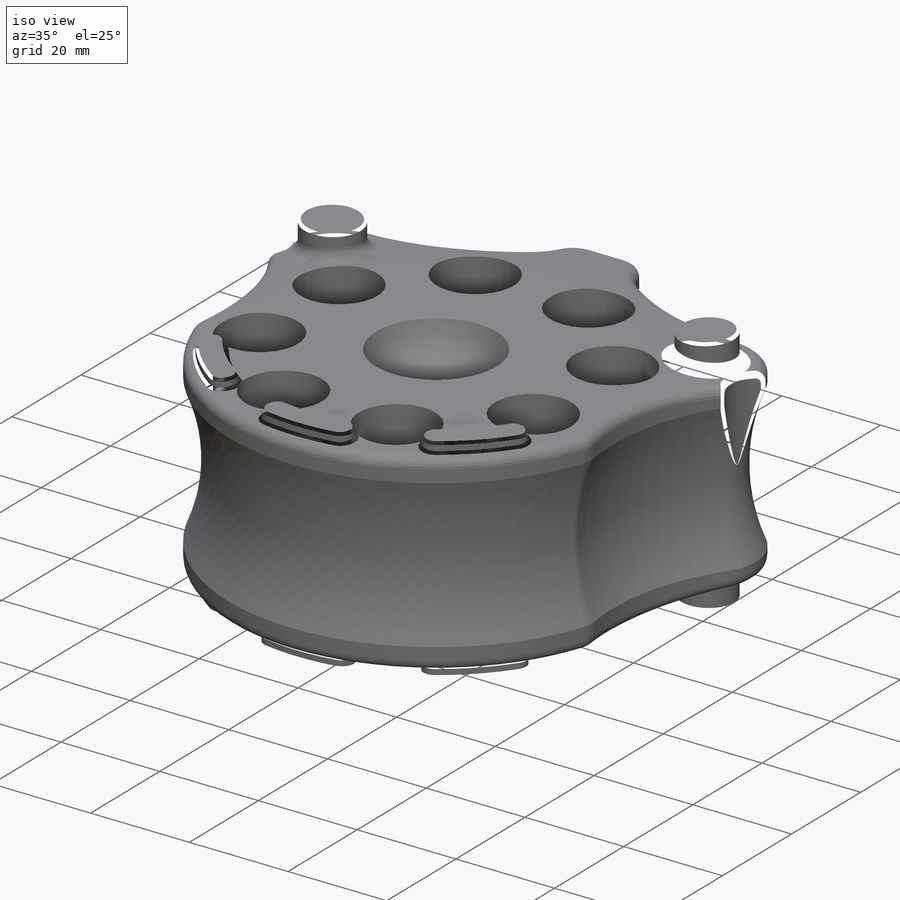
[diagram: iso view]
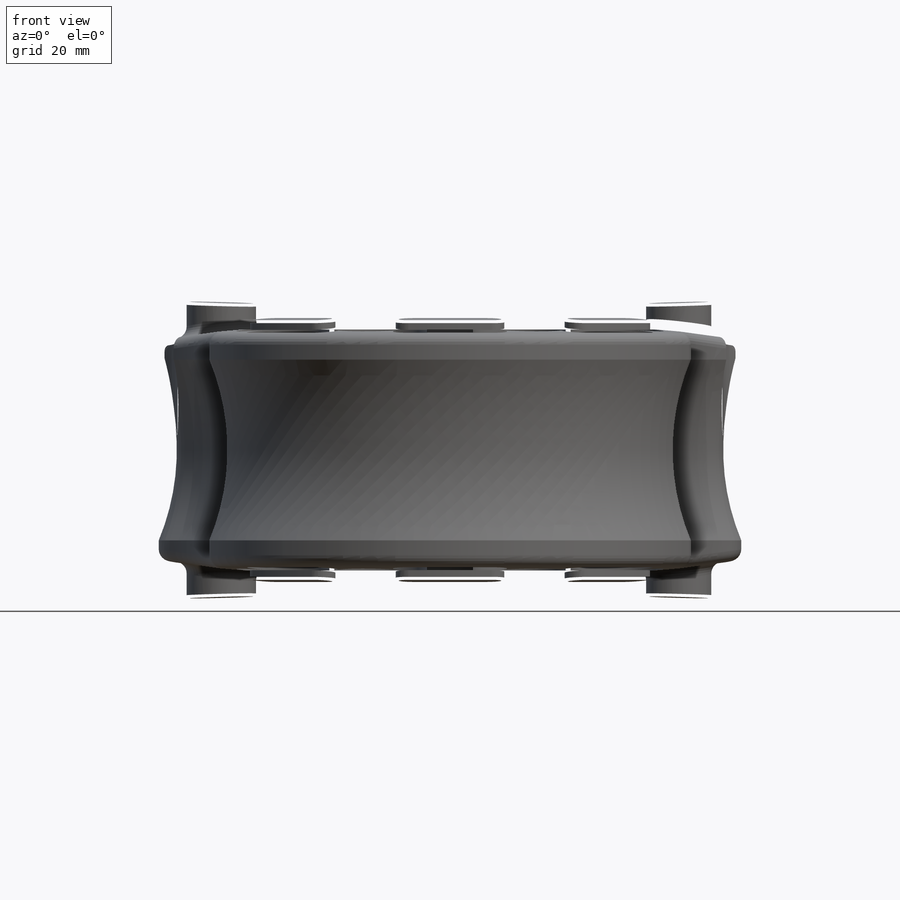
[diagram: front view]
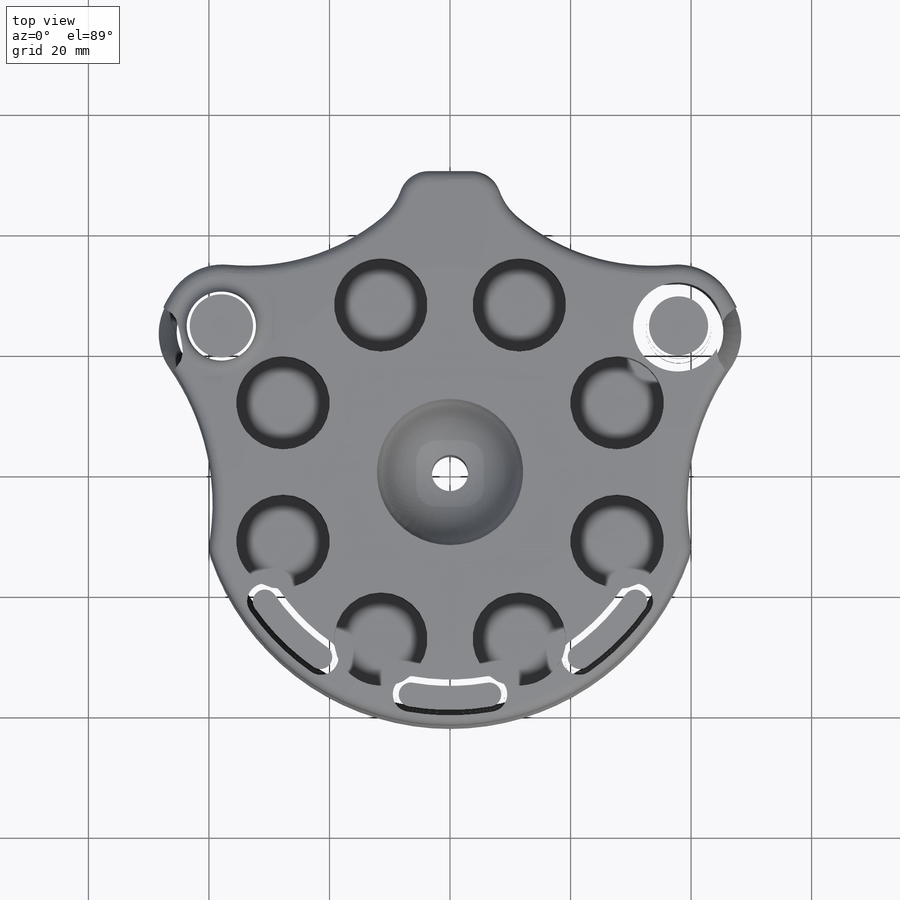
[diagram: top view]
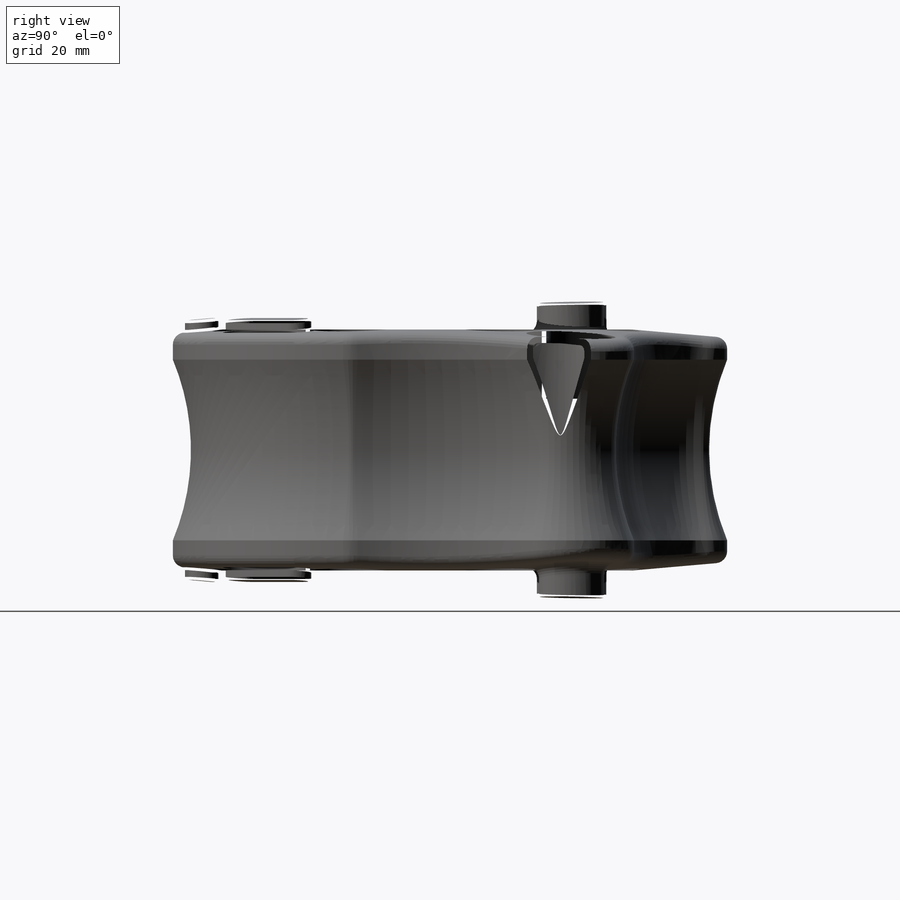
[diagram: right view]
SOLIDWORKS PART (.sldprt)
format: sldprt  version: not decoded by parser v0  size: 1,936,896 bytes
history: native  units: mm
features: sketch x14, extrude x9, fillet x6, plane x5, cut_revolve x4, cut_extrude x3, pattern_circular x3, mirror x2, material x1, delete_body x1, boolean_combine x1 (+9 scaffold rows collapsed)
feature tree (58):
  scaffold x9  (default folders/planes/origin — collapsed)
  material  "Material <nicht festgelegt>"
  plane  "Vorne"
  plane  "Oben"
  plane  "Rechts"
  sketch  "Skizze1"  dims[D1=40.0mm D2=50.0mm]
  extrude  "Aufsatz-Linear austragen1"  Depth=40mm
  plane  "Ebene1"  Offset=3mm
  plane  "Ebene2"  Offset=3mm
  sketch  "Skizze2"  dims[D1=25.0mm D2=3.0mm]
  cut_revolve  "Schnitt-Rotation1"  Angle=360deg
  sketch  "Skizze3"  dims[D1=25.0mm D2=3.0mm]
  cut_revolve  "Schnitt-Rotation2"  Angle=360deg
  sketch  "Skizze5"  dims[c1.D1=22.0mm c1.D2=30.0mm c2.D2=22.5deg]
  extrude  "Aufsatz-Linear austragen2"  [1 undecoded]
  sketch  "Skizze7"  dims[D1=15.5mm]
  cut_extrude  "Schnitt-Linear austragen1"  Depth=11.5mm
  mirror  "Spiegeln1"
  pattern_circular  "Kreismuster1"  Count=8 Angle=360deg
  sketch  "Skizze8"  dims[D1=6.0mm]
  cut_extrude  "Schnitt-Linear austragen2"  [1 undecoded]
  sketch  "Skizze10"  dims[c1.D1=~25.252691mm c1.D3=13.0mm c1.D4=~7.679008mm c2.D1=60.0mm c2.D5=40.0mm c2.D9=35.0mm c3.D1=~38.386654mm c4.D1=67.0deg c4.D2=55.0mm c4.D4=55.0mm c5.D1=~165.136938mm c5.D4=60.0mm c6.D1=~49.156823mm c6.D2=~32.099018mm c7.D1=~30.489363mm c7.D2=~327.275441mm c8.D1=45.0mm c8.D2=32.0mm c8.D3=15.0mm c8.D4=25.0mm c8.D5=~43.206556mm c9.D2=30.0mm c9.D3=15.0mm c9.D6=17.0mm c9.D7=15.0mm c9.D1=55.0mm c10.D2=42.0mm c10.D3=5.0mm c10.D4=33.0mm c11.D4=120.0deg c11.D6=~5.060359mm c12.D6=100.0deg c12.D7=15.0mm c12.D8=5.0mm c12.D10=15.0mm c12.D11=50.0mm c12.D4=~60.811907mm c13.D4=122.0deg c13.D1=0.0mm c13.D5=0.0mm c13.D12=0.0mm]
  extrude  "Aufsatz-Linear austragen3"  [1 undecoded]
  pattern_circular  "Spiegeln2"  [2 undecoded]
  sketch  "Skizze9"  dims[c1.D1=~50.196923mm c2.D1=10.0deg c3.D1=50.0mm c3.D2=~20.493034mm c4.D2=5.0deg c4.D3=~0.060117mm c4.D1=10.0mm]
  cut_revolve  "Schnitt-Rotation7"  Angle=360deg
  extrude  "Achse2"  [1 undecoded]
  extrude  "Achse3"  [1 undecoded]
  extrude  "Achse4"  [1 undecoded]
  extrude  "Achse5"  [1 undecoded]
  fillet  "Verrundung1"  Radius=10mm
  fillet  "Verrundung2"  Radius=5mm
  sketch  "Skizze11"  dims[D1=3.0mm]
  sketch  "Skizze12"  dims[c1.D1=35.0mm c1.D2=40.0mm c2.D1=30.0mm]
  delete_body  "Körper-Löschen1"
  sketch  "Skizze16"  dims[D1=15.0mm D2=21.0mm D3=52.7mm]
  cut_extrude  "Schnitt-Linear austragen3"  [1 undecoded]
  fillet  "Verrundung3"  Radius=2mm
  sketch  "Skizze13"  dims[c1.D1=37.5mm c1.D2=2.5mm c2.D1=5.0mm c2.D2=37.5mm c2.D3=13.0mm c2.D4=~21.545737mm c3.D4=45.0deg]
  extrude  "Aufsatz-Linear austragen4"  Depth=2mm
  mirror  "Spiegeln6"
  boolean_combine  "Kombinieren3"
  sketch  "Skizze14"  dims[c1.D1=~9.789958mm c2.D1=115.0deg c2.D2=45.0mm]
  extrude  "Aufsatz-Linear austragen5"  Depth=50mm
  sketch  "Skizze15"  dims[D1=6.0mm D2=5.0mm]
  cut_revolve  "Schnitt-Rotation8"  Angle=180deg
  pattern_circular  "Spiegeln5"  [2 undecoded]
  fillet  "Verrundung4"  Radius=2mm
  fillet  "Verrundung5"  Radius=0.5mm
  fillet  "Verrundung6"  Radius=1mm
decode coverage: 29 of 43 modeling features carry decoded parameters
note: ~ marks probable driven/reference dimensions
note: 12 parameter values undecoded
summary: no parameter record found for 8 features
note: suppression state not decoded; provenance and decode notes live in map.json
